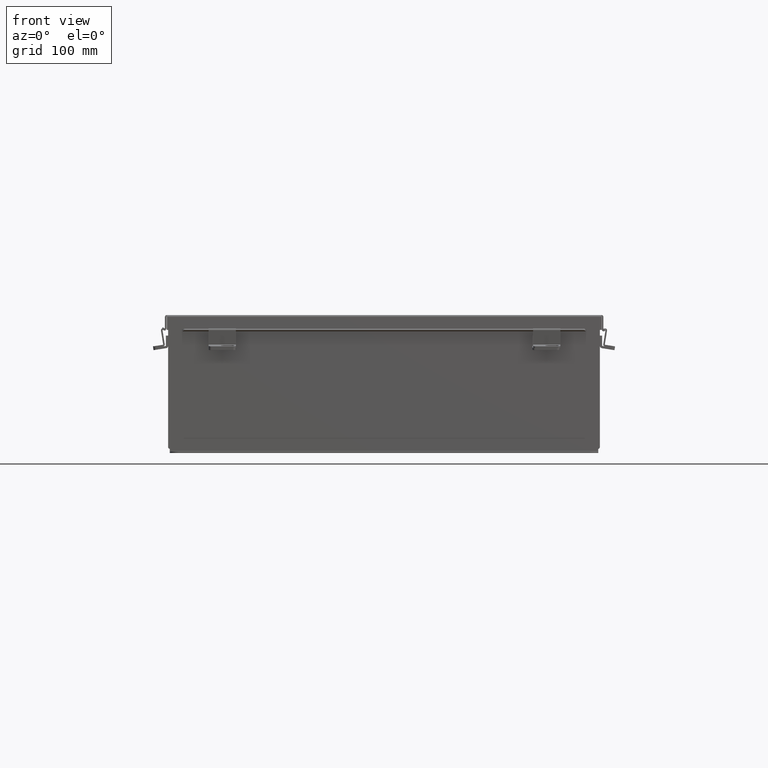
[diagram: clean part render]
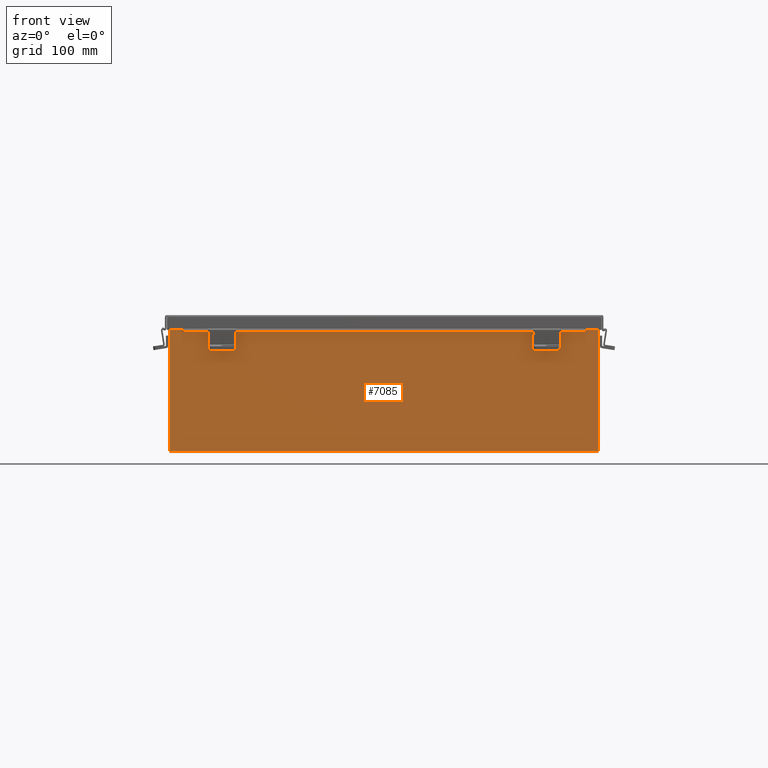
[diagram: same view with one face highlighted and labeled with its STEP entity id]
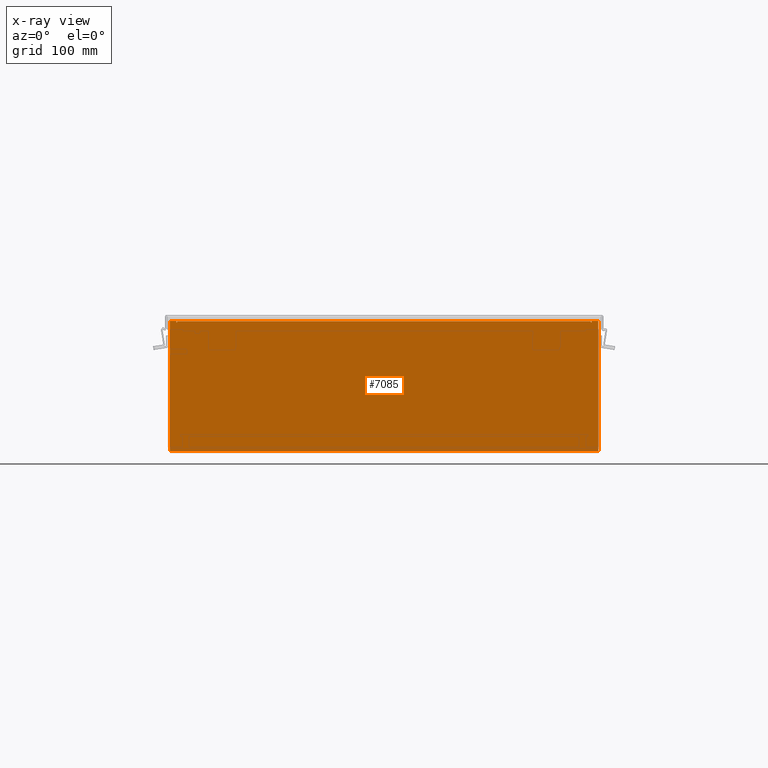
[diagram: x-ray of the same camera — body ghosted, the highlighted face saturated]
A machine part, front view. The second image highlights one B-rep face of the part: STEP entity #7085.
The next image is the same camera in x-ray: the body ghosted, the highlighted face saturated — about 0% of this face is hidden behind the body in this view.
In plain terms, the highlighted planar face has unit normal (-0, 1, -0).
Its self-contained STEP definition (entity closure, byte-faithful):
#93 = ORIENTED_EDGE ( 'NONE', *, *, #95, .T. ) ;
#95 = EDGE_CURVE ( 'NONE', #7642, #3626, #1517, .T. ) ;
#110 = CARTESIAN_POINT ( 'NONE',  ( -9.582299999999991200, 2.185478394931410600E-015, 2.912299999999998800 ) ) ;
#285 = LINE ( 'NONE', #9829, #2549 ) ;
#332 = VECTOR ( 'NONE', #5725, 39.37007874015748100 ) ;
#457 = VERTEX_POINT ( 'NONE', #1860 ) ;
#558 = LINE ( 'NONE', #6977, #6686 ) ;
#644 = EDGE_CURVE ( 'NONE', #1809, #5005, #7481, .T. ) ;
#723 = DIRECTION ( 'NONE',  ( 0.0000000000000000000, 0.0000000000000000000, -1.000000000000000000 ) ) ;
#922 = LINE ( 'NONE', #2880, #7051 ) ;
#997 = DIRECTION ( 'NONE',  ( 0.0000000000000000000, 0.0000000000000000000, 1.000000000000000000 ) ) ;
#1110 = DIRECTION ( 'NONE',  ( 0.0000000000000000000, 0.0000000000000000000, -1.000000000000000000 ) ) ;
#1240 = VERTEX_POINT ( 'NONE', #7848 ) ;
#1417 = EDGE_CURVE ( 'NONE', #2638, #1809, #3843, .T. ) ;
#1443 = AXIS2_PLACEMENT_3D ( 'NONE', #4069, #2543, #7974 ) ;
#1449 = EDGE_CURVE ( 'NONE', #2462, #1240, #2556, .T. ) ;
#1517 = LINE ( 'NONE', #3546, #332 ) ;
#1608 = CARTESIAN_POINT ( 'NONE',  ( 9.619650000000010700, 1.748382715945128500E-014, 2.874949999999998800 ) ) ;
#1634 = DIRECTION ( 'NONE',  ( -3.735477378271307500E-016, 0.0000000000000000000, -1.000000000000000000 ) ) ;
#1689 = ORIENTED_EDGE ( 'NONE', *, *, #644, .T. ) ;
#1766 = PLANE ( 'NONE',  #1443 ) ;
#1768 = CARTESIAN_POINT ( 'NONE',  ( 9.619649999999939600, 0.0000000000000000000, -2.043422299260868900E-013 ) ) ;
#1809 = VERTEX_POINT ( 'NONE', #7679 ) ;
#1860 = CARTESIAN_POINT ( 'NONE',  ( -9.619649999999991200, 0.0000000000000000000, 2.874949999999997900 ) ) ;
#1873 = DIRECTION ( 'NONE',  ( 1.000000000000000000, 4.910036603141682400E-031, 0.0000000000000000000 ) ) ;
#2282 = VECTOR ( 'NONE', #997, 39.37007874015748100 ) ;
#2415 = VECTOR ( 'NONE', #4984, 39.37007874015748100 ) ;
#2462 = VERTEX_POINT ( 'NONE', #110 ) ;
#2543 = DIRECTION ( 'NONE',  ( -4.910036603141682400E-031, -1.000000000000000000, -0.0000000000000000000 ) ) ;
#2549 = VECTOR ( 'NONE', #1634, 39.37007874015748100 ) ;
#2556 = LINE ( 'NONE', #3976, #4021 ) ;
#2638 = VERTEX_POINT ( 'NONE', #8408 ) ;
#2669 = VECTOR ( 'NONE', #6768, 39.37007874015748100 ) ;
#2764 = VECTOR ( 'NONE', #1873, 39.37007874015748100 ) ;
#2880 = CARTESIAN_POINT ( 'NONE',  ( -9.619649999999998300, 0.0000000000000000000, 0.0000000000000000000 ) ) ;
#2977 = DIRECTION ( 'NONE',  ( 4.910036603141682400E-031, 1.000000000000000000, -0.0000000000000000000 ) ) ;
#3111 = FACE_OUTER_BOUND ( 'NONE', #7073, .T. ) ;
#3188 = LINE ( 'NONE', #5976, #2669 ) ;
#3278 = EDGE_CURVE ( 'NONE', #7642, #7738, #4024, .T. ) ;
#3442 = EDGE_CURVE ( 'NONE', #3626, #5744, #285, .T. ) ;
#3546 = CARTESIAN_POINT ( 'NONE',  ( -9.925300000000016000, 0.0000000000000000000, 2.925300000000000000 ) ) ;
#3626 = VERTEX_POINT ( 'NONE', #8194 ) ;
#3629 = EDGE_CURVE ( 'NONE', #1240, #457, #6050, .T. ) ;
#3843 = LINE ( 'NONE', #6706, #2282 ) ;
#3860 = ORIENTED_EDGE ( 'NONE', *, *, #3442, .T. ) ;
#3937 = CARTESIAN_POINT ( 'NONE',  ( 9.582300000000010700, 1.748382715945128500E-014, 2.912299999999998800 ) ) ;
#3976 = CARTESIAN_POINT ( 'NONE',  ( -9.582299999999998300, 0.0000000000000000000, 4.370956789862821100E-015 ) ) ;
#4021 = VECTOR ( 'NONE', #6588, 39.37007874015748100 ) ;
#4024 = LINE ( 'NONE', #1768, #9075 ) ;
#4069 = CARTESIAN_POINT ( 'NONE',  ( 0.0000000000000000000, 0.0000000000000000000, 0.0000000000000000000 ) ) ;
#4559 = EDGE_CURVE ( 'NONE', #9600, #9985, #9954, .T. ) ;
#4915 = ORIENTED_EDGE ( 'NONE', *, *, #9257, .F. ) ;
#4984 = DIRECTION ( 'NONE',  ( 0.0000000000000000000, 0.0000000000000000000, 1.000000000000000000 ) ) ;
#4993 = CARTESIAN_POINT ( 'NONE',  ( 9.582300000000010700, 1.748382715945128500E-014, 2.874949999999999700 ) ) ;
#5005 = VERTEX_POINT ( 'NONE', #6218 ) ;
#5037 = ORIENTED_EDGE ( 'NONE', *, *, #4559, .F. ) ;
#5564 = ORIENTED_EDGE ( 'NONE', *, *, #9258, .F. ) ;
#5725 = DIRECTION ( 'NONE',  ( 1.000000000000000000, 4.910036603141682400E-031, 0.0000000000000000000 ) ) ;
#5744 = VERTEX_POINT ( 'NONE', #7836 ) ;
#5976 = CARTESIAN_POINT ( 'NONE',  ( -9.925299999999996500, -2.185478394931410600E-015, -3.099299999999999900 ) ) ;
#6050 = CIRCLE ( 'NONE', #8177, 0.01867500000000003900 ) ;
#6052 = ORIENTED_EDGE ( 'NONE', *, *, #1417, .T. ) ;
#6119 = CARTESIAN_POINT ( 'NONE',  ( 9.619650000000012500, 1.748382715945128500E-014, 2.925300000000000000 ) ) ;
#6218 = CARTESIAN_POINT ( 'NONE',  ( -9.619649999999991200, 0.0000000000000000000, 2.925300000000000000 ) ) ;
#6295 = EDGE_CURVE ( 'NONE', #7738, #9600, #7423, .T. ) ;
#6529 = DIRECTION ( 'NONE',  ( -2.170286390199931800E-014, -7.888609052210118100E-031, -1.000000000000000000 ) ) ;
#6559 = CARTESIAN_POINT ( 'NONE',  ( 9.582300000000001800, 0.0000000000000000000, 0.0000000000000000000 ) ) ;
#6578 = ORIENTED_EDGE ( 'NONE', *, *, #9020, .T. ) ;
#6588 = DIRECTION ( 'NONE',  ( 0.0000000000000000000, 0.0000000000000000000, -1.000000000000000000 ) ) ;
#6686 = VECTOR ( 'NONE', #7016, 39.37007874015748100 ) ;
#6706 = CARTESIAN_POINT ( 'NONE',  ( -9.925300000000016000, 0.0000000000000000000, 2.925300000000000000 ) ) ;
#6717 = DIRECTION ( 'NONE',  ( 4.910036603141682400E-031, 1.000000000000000000, -0.0000000000000000000 ) ) ;
#6768 = DIRECTION ( 'NONE',  ( 1.000000000000000000, 4.910036603141682400E-031, -0.0000000000000000000 ) ) ;
#6821 = CARTESIAN_POINT ( 'NONE',  ( -9.925300000000016000, 0.0000000000000000000, 2.925300000000000000 ) ) ;
#6977 = CARTESIAN_POINT ( 'NONE',  ( -9.582299999999989400, 2.185478394931410600E-015, 2.912299999999998800 ) ) ;
#7016 = DIRECTION ( 'NONE',  ( 1.000000000000000000, 4.910036603141682400E-031, -0.0000000000000000000 ) ) ;
#7025 = ORIENTED_EDGE ( 'NONE', *, *, #3278, .F. ) ;
#7051 = VECTOR ( 'NONE', #9879, 39.37007874015748100 ) ;
#7073 = EDGE_LOOP ( 'NONE', ( #4915, #8442, #7531, #6578, #5037, #8243, #7025, #93, #3860, #5564, #6052, #1689 ) ) ;
#7078 = CARTESIAN_POINT ( 'NONE',  ( -9.600974999999989400, 0.0000000000000000000, 2.874949999999997900 ) ) ;
#7085 = ADVANCED_FACE ( 'NONE', ( #3111 ), #1766, .F. ) ;
#7423 = CIRCLE ( 'NONE', #9425, 0.01867500000000003900 ) ;
#7481 = LINE ( 'NONE', #6821, #2764 ) ;
#7531 = ORIENTED_EDGE ( 'NONE', *, *, #1449, .F. ) ;
#7642 = VERTEX_POINT ( 'NONE', #6119 ) ;
#7679 = CARTESIAN_POINT ( 'NONE',  ( -9.925300000000016000, 0.0000000000000000000, 2.925300000000000000 ) ) ;
#7738 = VERTEX_POINT ( 'NONE', #1608 ) ;
#7836 = CARTESIAN_POINT ( 'NONE',  ( 9.925300000000000000, 0.0000000000000000000, -3.099299999999995500 ) ) ;
#7848 = CARTESIAN_POINT ( 'NONE',  ( -9.582299999999991200, 0.0000000000000000000, 2.874949999999999700 ) ) ;
#7957 = CARTESIAN_POINT ( 'NONE',  ( 9.600975000000010700, 1.748382715945128500E-014, 2.874949999999998800 ) ) ;
#7974 = DIRECTION ( 'NONE',  ( 0.0000000000000000000, 0.0000000000000000000, -1.000000000000000000 ) ) ;
#8177 = AXIS2_PLACEMENT_3D ( 'NONE', #7078, #6717, #723 ) ;
#8194 = CARTESIAN_POINT ( 'NONE',  ( 9.925299999999985800, 1.748382715945128500E-014, 2.925300000000000000 ) ) ;
#8243 = ORIENTED_EDGE ( 'NONE', *, *, #6295, .F. ) ;
#8408 = CARTESIAN_POINT ( 'NONE',  ( -9.925299999999992900, -2.185478394931410600E-015, -3.099299999999999900 ) ) ;
#8442 = ORIENTED_EDGE ( 'NONE', *, *, #3629, .F. ) ;
#9020 = EDGE_CURVE ( 'NONE', #2462, #9985, #558, .T. ) ;
#9075 = VECTOR ( 'NONE', #6529, 39.37007874015748100 ) ;
#9257 = EDGE_CURVE ( 'NONE', #457, #5005, #922, .T. ) ;
#9258 = EDGE_CURVE ( 'NONE', #2638, #5744, #3188, .T. ) ;
#9425 = AXIS2_PLACEMENT_3D ( 'NONE', #7957, #2977, #1110 ) ;
#9600 = VERTEX_POINT ( 'NONE', #4993 ) ;
#9829 = CARTESIAN_POINT ( 'NONE',  ( 9.925299999999985800, 1.748382715945128500E-014, 2.925300000000000000 ) ) ;
#9879 = DIRECTION ( 'NONE',  ( 0.0000000000000000000, 0.0000000000000000000, 1.000000000000000000 ) ) ;
#9954 = LINE ( 'NONE', #6559, #2415 ) ;
#9985 = VERTEX_POINT ( 'NONE', #3937 ) ;